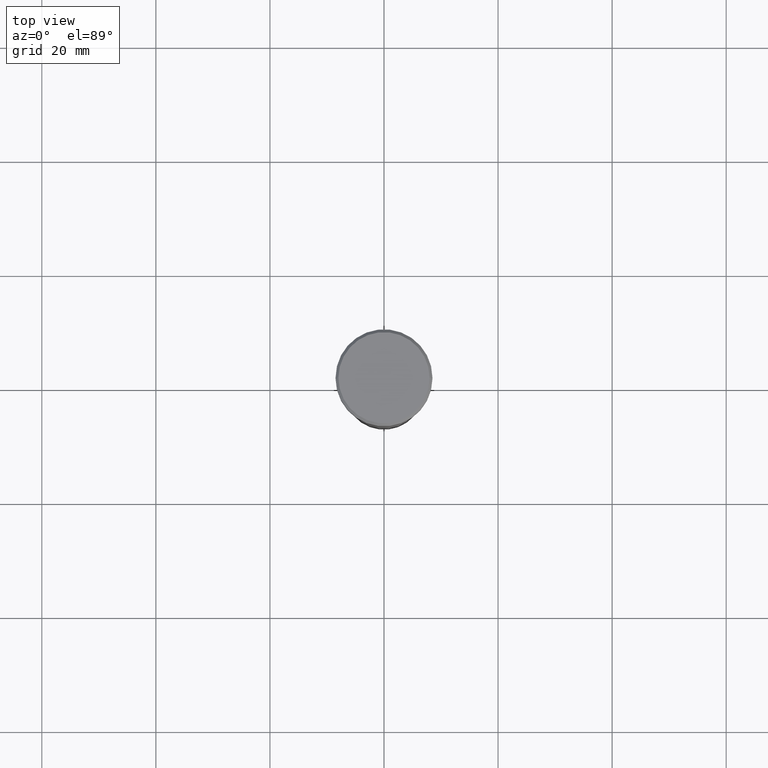
[diagram: clean part render]
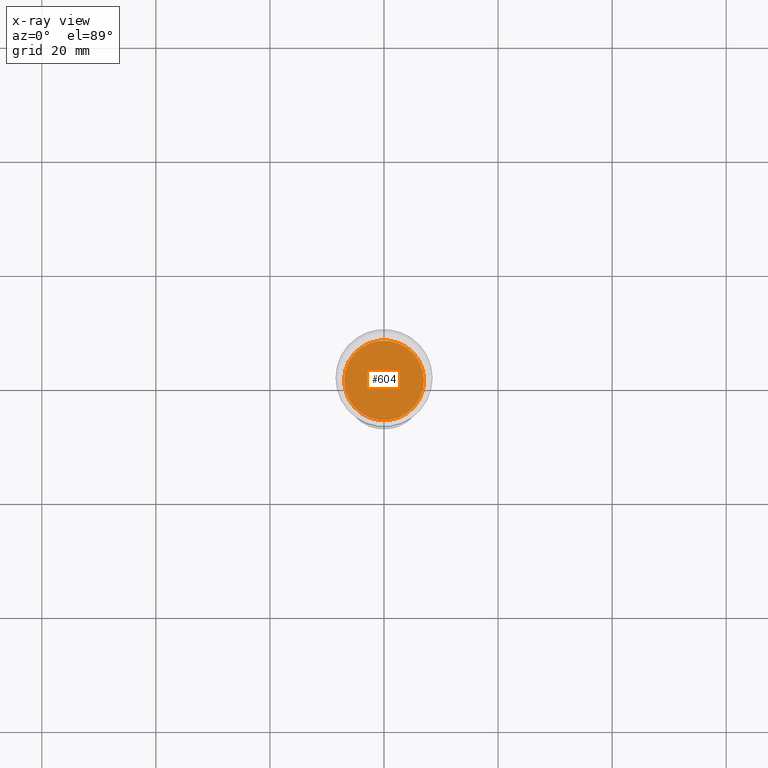
[diagram: x-ray — body ghosted, one internal face saturated and labeled with its STEP entity id]
A machine part, top view, then the same camera in x-ray: the body is ghosted and one INTERNAL B-rep face — a face not visible from any outside direction — is saturated and labeled: STEP entity #604.
In plain terms, the highlighted planar face has unit normal (0, 0, -1).
Its self-contained STEP definition (entity closure, byte-faithful):
#6 = DIRECTION ( 'NONE',  ( 1.000000000000000000, 0.000000000000000000, 0.000000000000000000 ) ) ;
#25 = PLANE ( 'NONE',  #1092 ) ;
#85 = EDGE_CURVE ( 'NONE', #1099, #545, #774, .T. ) ;
#117 = CARTESIAN_POINT ( 'NONE',  ( 0.000000000000000000, 0.000000000000000000, -28.00000000000000000 ) ) ;
#225 = DIRECTION ( 'NONE',  ( -0.000000000000000000, -0.000000000000000000, 1.000000000000000000 ) ) ;
#260 = CIRCLE ( 'NONE', #509, 6.999999999999999112 ) ;
#386 = DIRECTION ( 'NONE',  ( -0.000000000000000000, -0.000000000000000000, 1.000000000000000000 ) ) ;
#418 = ORIENTED_EDGE ( 'NONE', *, *, #474, .T. ) ;
#456 = ORIENTED_EDGE ( 'NONE', *, *, #85, .T. ) ;
#474 = EDGE_CURVE ( 'NONE', #545, #1099, #260, .T. ) ;
#509 = AXIS2_PLACEMENT_3D ( 'NONE', #117, #225, #1112 ) ;
#545 = VERTEX_POINT ( 'NONE', #681 ) ;
#551 = DIRECTION ( 'NONE',  ( 0.000000000000000000, 0.000000000000000000, -1.000000000000000000 ) ) ;
#604 = ADVANCED_FACE ( 'NONE', ( #973 ), #25, .F. ) ;
#622 = DIRECTION ( 'NONE',  ( -1.000000000000000000, 0.000000000000000000, -0.000000000000000000 ) ) ;
#635 = AXIS2_PLACEMENT_3D ( 'NONE', #1083, #386, #6 ) ;
#681 = CARTESIAN_POINT ( 'NONE',  ( -6.999999999999999112, 8.572527594031472204E-16, -28.00000000000000000 ) ) ;
#687 = CARTESIAN_POINT ( 'NONE',  ( 6.999999999999999112, 0.000000000000000000, -28.00000000000000000 ) ) ;
#774 = CIRCLE ( 'NONE', #635, 6.999999999999999112 ) ;
#852 = EDGE_LOOP ( 'NONE', ( #456, #418 ) ) ;
#973 = FACE_OUTER_BOUND ( 'NONE', #852, .T. ) ;
#1081 = CARTESIAN_POINT ( 'NONE',  ( 0.000000000000000000, 0.000000000000000000, -28.00000000000000000 ) ) ;
#1083 = CARTESIAN_POINT ( 'NONE',  ( 0.000000000000000000, 0.000000000000000000, -28.00000000000000000 ) ) ;
#1092 = AXIS2_PLACEMENT_3D ( 'NONE', #1081, #551, #622 ) ;
#1099 = VERTEX_POINT ( 'NONE', #687 ) ;
#1112 = DIRECTION ( 'NONE',  ( 1.000000000000000000, 0.000000000000000000, 0.000000000000000000 ) ) ;